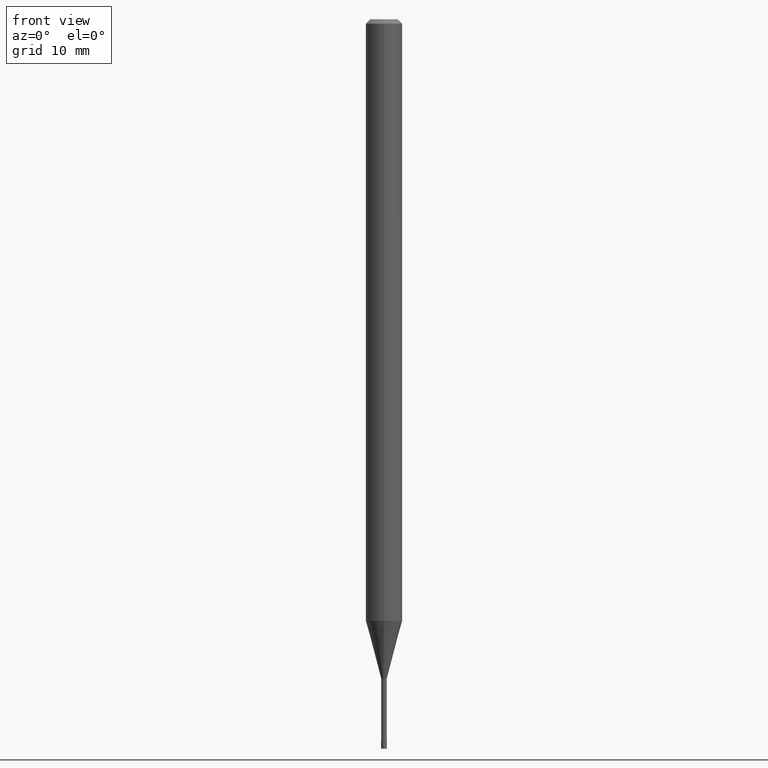
[diagram: clean part render]
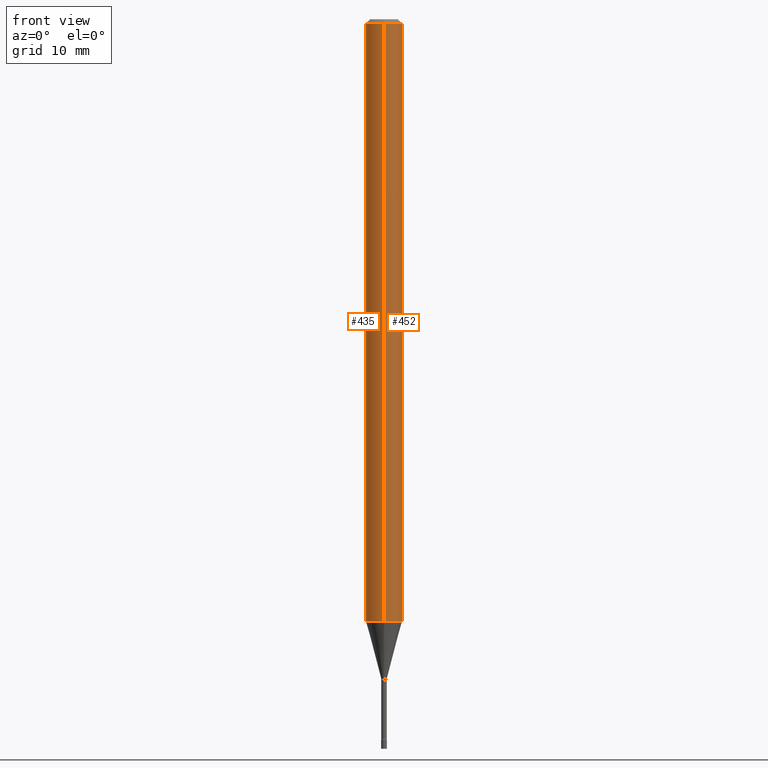
[diagram: same view with one multi-face feature highlighted, each face labeled with its STEP entity id]
A machine part, front view. The highlighted faces form ONE feature: a constant-radius fillet chain: 2 tangent blend faces with common blend radius 1.5875 mm. The faces share edges in the B-rep.
Their STEP definitions:
[1] entity #435 (Cylinder):
#49 = EDGE_CURVE ( 'NONE', #411, #89, #266, .T. ) ;
#53 = ORIENTED_EDGE ( 'NONE', *, *, #480, .T. ) ;
#64 = ORIENTED_EDGE ( 'NONE', *, *, #383, .T. ) ;
#80 = VECTOR ( 'NONE', #382, 39.37007874015748143 ) ;
#89 = VERTEX_POINT ( 'NONE', #197 ) ;
#98 = CARTESIAN_POINT ( 'NONE',  ( 0.000000000000000000, 0.000000000000000000, 0.000000000000000000 ) ) ;
#103 = DIRECTION ( 'NONE',  ( -2.445536542724447659E-29, 3.491384336263527933E-15, 1.000000000000000000 ) ) ;
#118 = VECTOR ( 'NONE', #175, 39.37007874015748143 ) ;
#133 = VERTEX_POINT ( 'NONE', #274 ) ;
#137 = CARTESIAN_POINT ( 'NONE',  ( 3.668304814086678845E-31, -5.237076504395302352E-17, -0.01500000000000003067 ) ) ;
#138 = CIRCLE ( 'NONE', #433, 0.06250000000000000000 ) ;
#142 = ORIENTED_EDGE ( 'NONE', *, *, #49, .F. ) ;
#163 = CARTESIAN_POINT ( 'NONE',  ( -4.364351673553412809E-16, -0.06250000000000720257, -2.061828102118093309 ) ) ;
#175 = DIRECTION ( 'NONE',  ( -2.445536542724447659E-29, 3.491384336263527933E-15, 1.000000000000000000 ) ) ;
#197 = CARTESIAN_POINT ( 'NONE',  ( 4.440892098501133005E-16, 0.06249999999999995143, -0.01500000000000024751 ) ) ;
#212 = DIRECTION ( 'NONE',  ( -2.445536542724447659E-29, 3.491384336263527933E-15, 1.000000000000000000 ) ) ;
#213 = CARTESIAN_POINT ( 'NONE',  ( 4.440892098501128074E-16, 0.06249999999999279743, -2.061828102118093753 ) ) ;
#223 = DIRECTION ( 'NONE',  ( -6.982962677686265922E-15, -1.000000000000000000, 4.370956789862821150E-15 ) ) ;
#242 = VERTEX_POINT ( 'NONE', #163 ) ;
#263 = FACE_OUTER_BOUND ( 'NONE', #490, .T. ) ;
#266 = LINE ( 'NONE', #427, #118 ) ;
#274 = CARTESIAN_POINT ( 'NONE',  ( -4.364351673553912750E-16, -0.06250000000000005551, -0.01499999999999981209 ) ) ;
#299 = AXIS2_PLACEMENT_3D ( 'NONE', #137, #103, #467 ) ;
#300 = CYLINDRICAL_SURFACE ( 'NONE', #470, 0.06250000000000000000 ) ;
#308 = ORIENTED_EDGE ( 'NONE', *, *, #511, .F. ) ;
#335 = DIRECTION ( 'NONE',  ( -2.445536542724447659E-29, 3.491384336263527933E-15, 1.000000000000000000 ) ) ;
#343 = LINE ( 'NONE', #345, #80 ) ;
#345 = CARTESIAN_POINT ( 'NONE',  ( -4.364351673553916201E-16, -0.06250000000000000000, 2.182115210164704958E-16 ) ) ;
#372 = DIRECTION ( 'NONE',  ( -6.982962677686265922E-15, -1.000000000000000000, 3.491384336263527933E-15 ) ) ;
#382 = DIRECTION ( 'NONE',  ( -2.445536542724447659E-29, 3.491384336263527933E-15, 1.000000000000000000 ) ) ;
#383 = EDGE_CURVE ( 'NONE', #411, #242, #138, .T. ) ;
#397 = CIRCLE ( 'NONE', #299, 0.06250000000000000000 ) ;
#411 = VERTEX_POINT ( 'NONE', #213 ) ;
#426 = CARTESIAN_POINT ( 'NONE',  ( 5.042275968545992406E-29, -7.198634339803070336E-15, -2.061828102118093753 ) ) ;
#427 = CARTESIAN_POINT ( 'NONE',  ( 4.440892098500625669E-16, 0.06250000000000000000, -2.182115210164704958E-16 ) ) ;
#433 = AXIS2_PLACEMENT_3D ( 'NONE', #426, #335, #223 ) ;
#435 = ADVANCED_FACE ( 'NONE', ( #263 ), #300, .T. ) ;
#467 = DIRECTION ( 'NONE',  ( -6.982962677686265922E-15, -1.000000000000000000, 3.483106191921935554E-15 ) ) ;
#470 = AXIS2_PLACEMENT_3D ( 'NONE', #98, #212, #372 ) ;
#480 = EDGE_CURVE ( 'NONE', #242, #133, #343, .T. ) ;
#490 = EDGE_LOOP ( 'NONE', ( #142, #64, #53, #308 ) ) ;
#511 = EDGE_CURVE ( 'NONE', #89, #133, #397, .T. ) ;
[2] entity #452 (Cylinder):
#6 = ORIENTED_EDGE ( 'NONE', *, *, #480, .F. ) ;
#13 = DIRECTION ( 'NONE',  ( -2.445536542724447659E-29, 3.491384336263527933E-15, 1.000000000000000000 ) ) ;
#34 = DIRECTION ( 'NONE',  ( -2.445536542724447659E-29, 3.491384336263527933E-15, 1.000000000000000000 ) ) ;
#49 = EDGE_CURVE ( 'NONE', #411, #89, #266, .T. ) ;
#55 = CYLINDRICAL_SURFACE ( 'NONE', #180, 0.06250000000000000000 ) ;
#80 = VECTOR ( 'NONE', #382, 39.37007874015748143 ) ;
#89 = VERTEX_POINT ( 'NONE', #197 ) ;
#95 = ORIENTED_EDGE ( 'NONE', *, *, #105, .T. ) ;
#105 = EDGE_CURVE ( 'NONE', #242, #411, #498, .T. ) ;
#118 = VECTOR ( 'NONE', #175, 39.37007874015748143 ) ;
#133 = VERTEX_POINT ( 'NONE', #274 ) ;
#134 = CARTESIAN_POINT ( 'NONE',  ( 0.000000000000000000, 0.000000000000000000, 0.000000000000000000 ) ) ;
#163 = CARTESIAN_POINT ( 'NONE',  ( -4.364351673553412809E-16, -0.06250000000000720257, -2.061828102118093309 ) ) ;
#175 = DIRECTION ( 'NONE',  ( -2.445536542724447659E-29, 3.491384336263527933E-15, 1.000000000000000000 ) ) ;
#178 = AXIS2_PLACEMENT_3D ( 'NONE', #391, #34, #199 ) ;
#180 = AXIS2_PLACEMENT_3D ( 'NONE', #134, #13, #412 ) ;
#197 = CARTESIAN_POINT ( 'NONE',  ( 4.440892098501133005E-16, 0.06249999999999995143, -0.01500000000000024751 ) ) ;
#199 = DIRECTION ( 'NONE',  ( -6.982962677686265922E-15, -1.000000000000000000, 4.370956789862821150E-15 ) ) ;
#213 = CARTESIAN_POINT ( 'NONE',  ( 4.440892098501128074E-16, 0.06249999999999279743, -2.061828102118093753 ) ) ;
#219 = FACE_OUTER_BOUND ( 'NONE', #493, .T. ) ;
#242 = VERTEX_POINT ( 'NONE', #163 ) ;
#249 = EDGE_CURVE ( 'NONE', #133, #89, #518, .T. ) ;
#266 = LINE ( 'NONE', #427, #118 ) ;
#274 = CARTESIAN_POINT ( 'NONE',  ( -4.364351673553912750E-16, -0.06250000000000005551, -0.01499999999999981209 ) ) ;
#288 = DIRECTION ( 'NONE',  ( -2.445536542724447659E-29, 3.491384336263527933E-15, 1.000000000000000000 ) ) ;
#336 = ORIENTED_EDGE ( 'NONE', *, *, #49, .T. ) ;
#343 = LINE ( 'NONE', #345, #80 ) ;
#345 = CARTESIAN_POINT ( 'NONE',  ( -4.364351673553916201E-16, -0.06250000000000000000, 2.182115210164704958E-16 ) ) ;
#367 = CARTESIAN_POINT ( 'NONE',  ( 3.668304814086678845E-31, -5.237076504395302352E-17, -0.01500000000000003067 ) ) ;
#382 = DIRECTION ( 'NONE',  ( -2.445536542724447659E-29, 3.491384336263527933E-15, 1.000000000000000000 ) ) ;
#391 = CARTESIAN_POINT ( 'NONE',  ( 5.042275968545992406E-29, -7.198634339803070336E-15, -2.061828102118093753 ) ) ;
#404 = AXIS2_PLACEMENT_3D ( 'NONE', #367, #288, #450 ) ;
#411 = VERTEX_POINT ( 'NONE', #213 ) ;
#412 = DIRECTION ( 'NONE',  ( -6.982962677686265922E-15, -1.000000000000000000, 3.491384336263527933E-15 ) ) ;
#427 = CARTESIAN_POINT ( 'NONE',  ( 4.440892098500625669E-16, 0.06250000000000000000, -2.182115210164704958E-16 ) ) ;
#450 = DIRECTION ( 'NONE',  ( -6.982962677686265922E-15, -1.000000000000000000, 3.483106191921935554E-15 ) ) ;
#452 = ADVANCED_FACE ( 'NONE', ( #219 ), #55, .T. ) ;
#480 = EDGE_CURVE ( 'NONE', #242, #133, #343, .T. ) ;
#493 = EDGE_LOOP ( 'NONE', ( #95, #336, #494, #6 ) ) ;
#494 = ORIENTED_EDGE ( 'NONE', *, *, #249, .F. ) ;
#498 = CIRCLE ( 'NONE', #178, 0.06250000000000000000 ) ;
#518 = CIRCLE ( 'NONE', #404, 0.06250000000000000000 ) ;